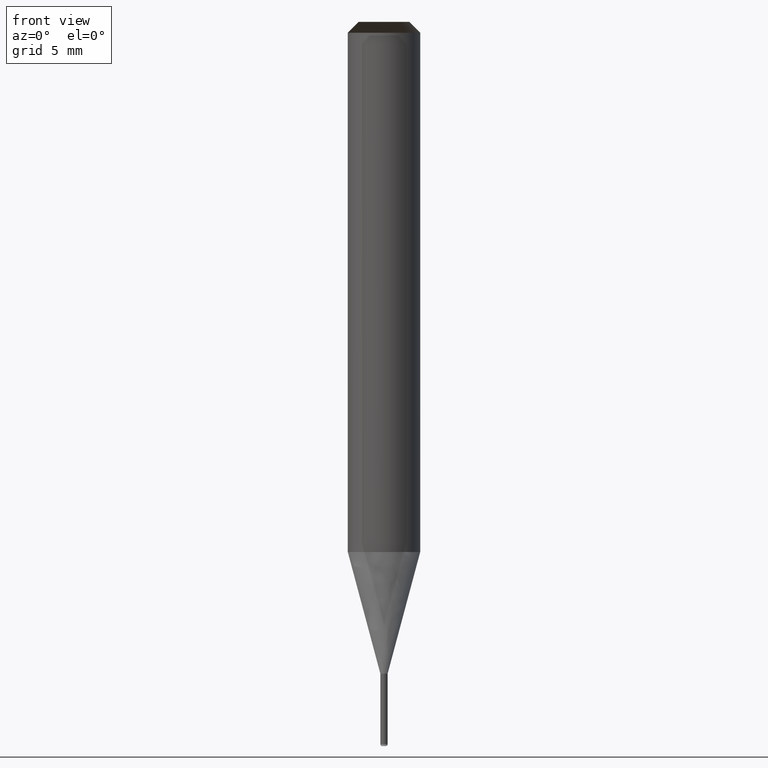
[diagram: clean part render]
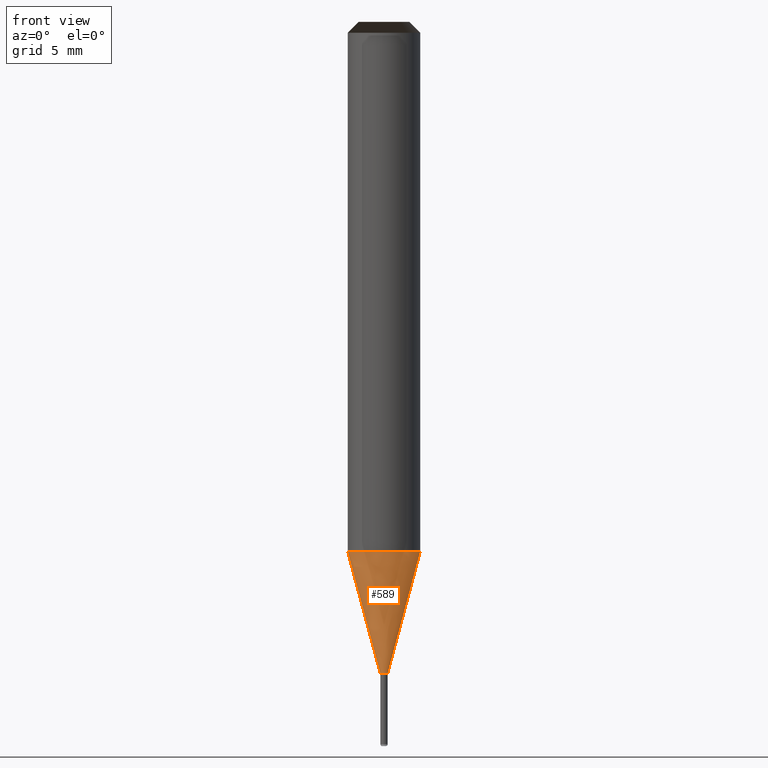
[diagram: same view with one face highlighted and labeled with its STEP entity id]
A machine part, front view. The second image highlights one B-rep face of the part: STEP entity #589.
In plain terms, the highlighted face is a freeform B-spline surface patch.
Its self-contained STEP definition (entity closure, byte-faithful):
#236=CARTESIAN_POINT('',(0.2,0.0,-6.717691453624));
#240=CARTESIAN_POINT('',(-0.2,0.0,-6.717691453624));
#241=CARTESIAN_POINT('',(2.0,0.0,0.0));
#245=CARTESIAN_POINT('',(-2.0,0.0,0.0));
#257=CARTESIAN_POINT('',(-0.2,-0.2,-6.717691453624));
#258=CARTESIAN_POINT('',(0.0,-0.2,-6.717691453624));
#259=CARTESIAN_POINT('',(0.2,-0.2,-6.717691453624));
#260=CARTESIAN_POINT('',(-2.0,-2.0,0.0));
#261=CARTESIAN_POINT('',(0.0,-2.0,0.0));
#262=CARTESIAN_POINT('',(2.0,-2.0,0.0));
#570=(
BOUNDED_SURFACE()
B_SPLINE_SURFACE(1,2,(
(#240,#257,#258,#259,#236),
(#245,#260,#261,#262,#241)
), .UNSPECIFIED.,.F.,.F.,.F.)
B_SPLINE_SURFACE_WITH_KNOTS((2,2),(3,2,3),(
0.0,1.0),(
0.0,0.5,1.0), .UNSPECIFIED.)
GEOMETRIC_REPRESENTATION_ITEM()
RATIONAL_B_SPLINE_SURFACE(((1.0,0.707106781187,1.0,0.707106781187,1.0),
(1.0,0.707106781187,1.0,0.707106781187,1.0)
))
REPRESENTATION_ITEM('')
SURFACE()
);
#571=(
BOUNDED_CURVE()
B_SPLINE_CURVE(1,(#245,#240),.UNSPECIFIED.,.F.,.F.)
B_SPLINE_CURVE_WITH_KNOTS((2,2),
(0.0,1.0),.UNSPECIFIED.)
CURVE()
GEOMETRIC_REPRESENTATION_ITEM()
RATIONAL_B_SPLINE_CURVE((1.0,1.0))
REPRESENTATION_ITEM('')
);
#572=(
BOUNDED_CURVE()
B_SPLINE_CURVE(2,(#240,#257,#258,#259,#236),.UNSPECIFIED.,.F.,.F.)
B_SPLINE_CURVE_WITH_KNOTS((3,2,3),
(0.0,0.5,1.0),.UNSPECIFIED.)
CURVE()
GEOMETRIC_REPRESENTATION_ITEM()
RATIONAL_B_SPLINE_CURVE((1.0,0.707106781187,1.0,0.707106781187,1.0))
REPRESENTATION_ITEM('')
);
#573=(
BOUNDED_CURVE()
B_SPLINE_CURVE(1,(#236,#241),.UNSPECIFIED.,.F.,.F.)
B_SPLINE_CURVE_WITH_KNOTS((2,2),
(0.0,1.0),.UNSPECIFIED.)
CURVE()
GEOMETRIC_REPRESENTATION_ITEM()
RATIONAL_B_SPLINE_CURVE((1.0,1.0))
REPRESENTATION_ITEM('')
);
#574=(
BOUNDED_CURVE()
B_SPLINE_CURVE(2,(#241,#262,#261,#260,#245),.UNSPECIFIED.,.F.,.F.)
B_SPLINE_CURVE_WITH_KNOTS((3,2,3),
(0.0,0.5,1.0),.UNSPECIFIED.)
CURVE()
GEOMETRIC_REPRESENTATION_ITEM()
RATIONAL_B_SPLINE_CURVE((1.0,0.707106781187,1.0,0.707106781187,1.0))
REPRESENTATION_ITEM('')
);
#575=VERTEX_POINT('',#236);
#576=VERTEX_POINT('',#240);
#577=VERTEX_POINT('',#241);
#578=VERTEX_POINT('',#245);
#579=EDGE_CURVE('',#578,#576,#571,.T.);
#580=EDGE_CURVE('',#576,#575,#572,.T.);
#581=EDGE_CURVE('',#575,#577,#573,.T.);
#582=EDGE_CURVE('',#577,#578,#574,.T.);
#583=ORIENTED_EDGE('',*,*,#579,.T.);
#584=ORIENTED_EDGE('',*,*,#580,.T.);
#585=ORIENTED_EDGE('',*,*,#581,.T.);
#586=ORIENTED_EDGE('',*,*,#582,.T.);
#587=EDGE_LOOP('',(#583,#584,#585,#586));
#588=FACE_OUTER_BOUND('',#587,.T.);
#589=ADVANCED_FACE('',(#588),#570,.T.);